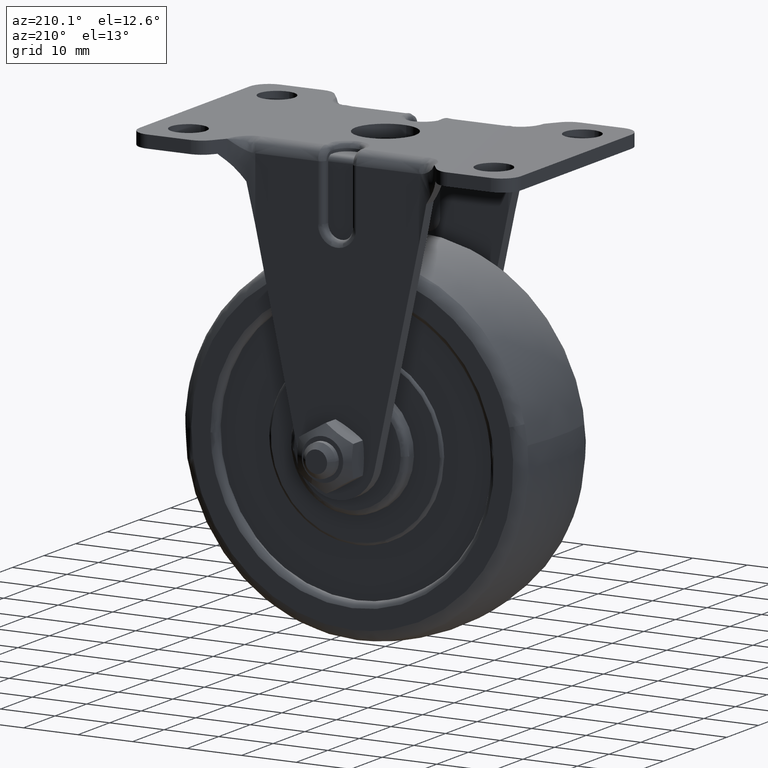
[diagram: clean part render]
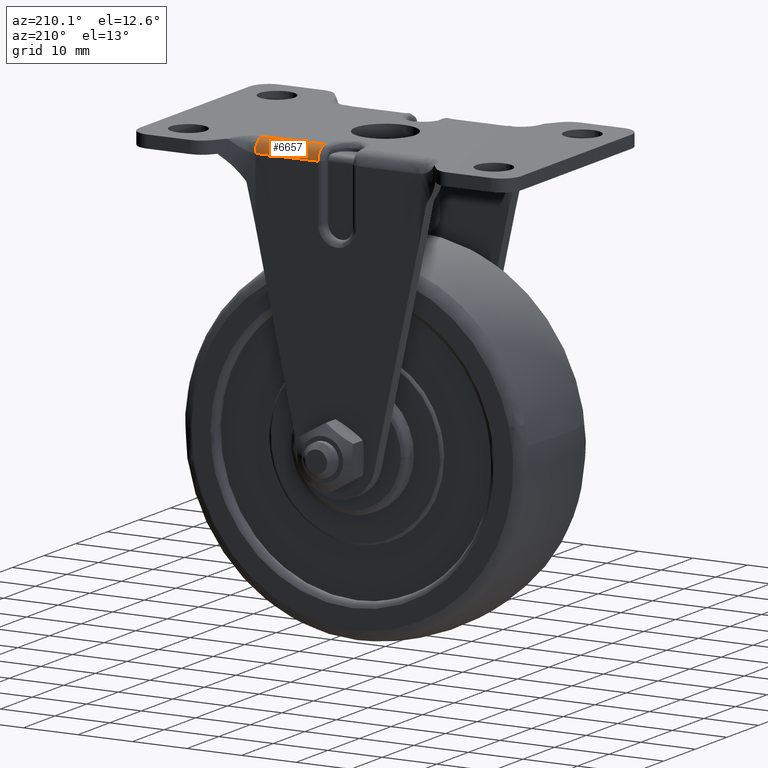
[diagram: same view with one face highlighted and labeled with its STEP entity id]
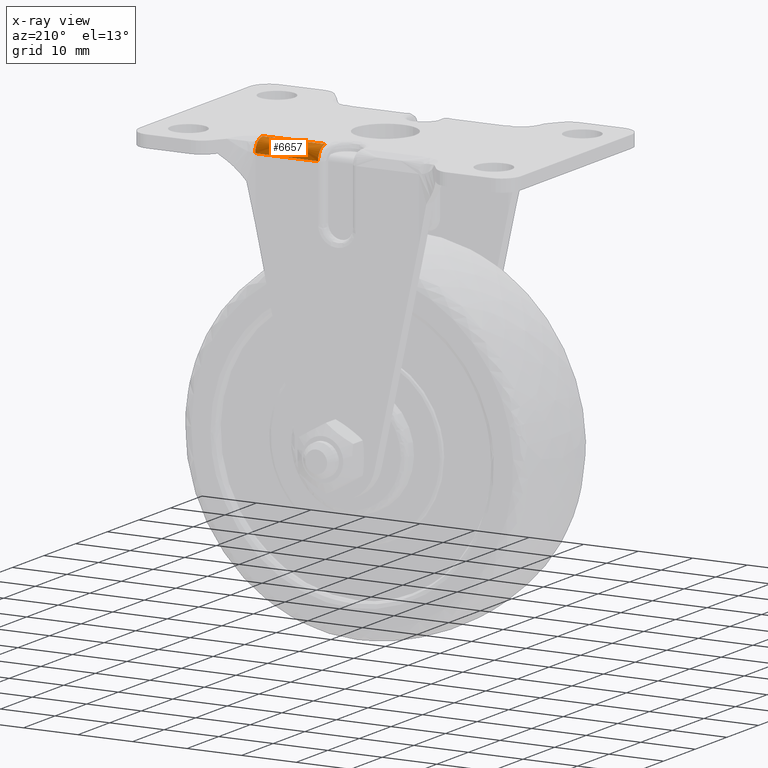
[diagram: x-ray of the same camera — body ghosted, the highlighted face saturated]
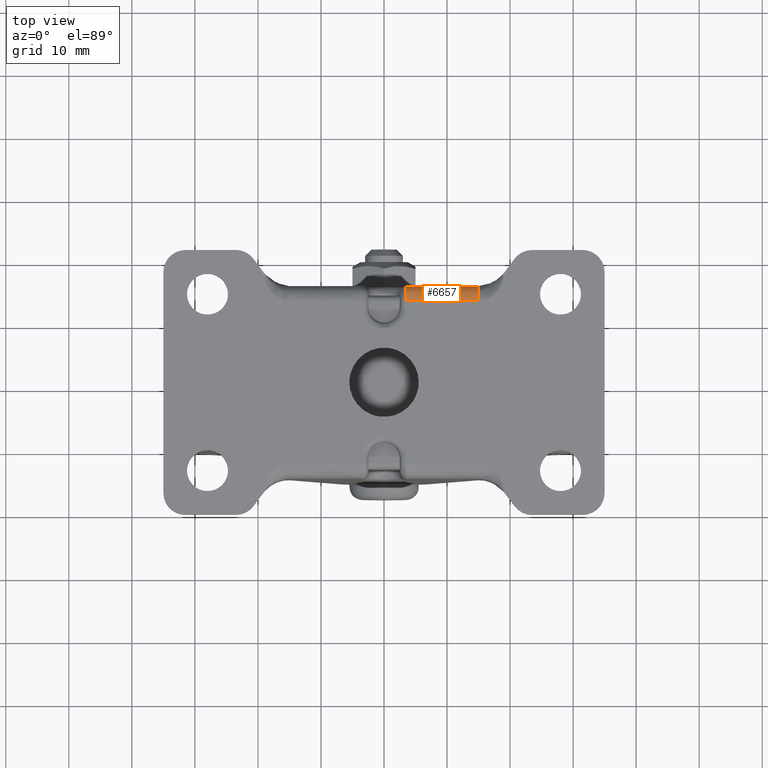
[diagram: same view with one face highlighted and labeled with its STEP entity id]
A machine part, auxiliary view. The second image highlights one B-rep face of the part: STEP entity #6657.
The next image is the same camera in x-ray: the body ghosted, the highlighted face saturated — about 0% of this face is hidden behind the body in this view.
A second angle (top view) of the same face is appended — the face is thin or edge-on in the first view.
In plain terms, the highlighted face is a freeform B-spline surface patch.
Its self-contained STEP definition (entity closure, byte-faithful):
#5119=CARTESIAN_POINT('',(3.500000000000200,15.300002999999901,47.200000000000003));
#5120=VERTEX_POINT('',#5119);
#5245=CARTESIAN_POINT('',(3.500000000000200,13.000002999999900,49.500000000000000));
#5246=VERTEX_POINT('',#5245);
#5260=CARTESIAN_POINT('',(3.500000000000202,15.300002999999901,47.200000000000003));
#5261=CARTESIAN_POINT('',(3.500000000000200,15.300002999999874,49.499999999999901));
#5262=CARTESIAN_POINT('',(3.500000000000204,13.000002999999900,49.500000000000000));
#5270=(BOUNDED_CURVE()B_SPLINE_CURVE(2,(#5260,#5261,#5262),.UNSPECIFIED.,.F.,.U.)CURVE()GEOMETRIC_REPRESENTATION_ITEM()QUASI_UNIFORM_CURVE()RATIONAL_B_SPLINE_CURVE((1.0,0.707106781186548,1.0))REPRESENTATION_ITEM(''));
#5271=EDGE_CURVE('',#5120,#5246,#5270,.T.);
#6603=CARTESIAN_POINT('',(15.0,13.000002999999900,49.500000000000000));
#6604=CARTESIAN_POINT('',(15.000000000000169,15.300002999999874,49.499999999999901));
#6605=CARTESIAN_POINT('',(15.0,15.300002999999901,47.200000000000003));
#6606=CARTESIAN_POINT('',(11.166666666666840,13.000002999999900,49.500000000000000));
#6607=CARTESIAN_POINT('',(11.166666666666860,15.300002999999874,49.499999999999893));
#6608=CARTESIAN_POINT('',(11.166666666666840,15.300002999999901,47.200000000000003));
#6609=CARTESIAN_POINT('',(7.333333333333530,13.000002999999900,49.500000000000000));
#6610=CARTESIAN_POINT('',(7.333333333333530,15.300002999999874,49.499999999999893));
#6611=CARTESIAN_POINT('',(7.333333333333520,15.300002999999901,47.200000000000003));
#6612=CARTESIAN_POINT('',(3.500000000000195,13.000002999999900,49.500000000000000));
#6613=CARTESIAN_POINT('',(3.500000000000194,15.300002999999874,49.499999999999893));
#6614=CARTESIAN_POINT('',(3.500000000000194,15.300002999999901,47.200000000000003));
#6622=(BOUNDED_SURFACE()B_SPLINE_SURFACE(2,3,((#6603,#6606,#6609,#6612),(#6604,#6607,#6610,#6613),(#6605,#6608,#6611,#6614)),.UNSPECIFIED.,.F.,.F.,.U.)B_SPLINE_SURFACE_WITH_KNOTS((3,3),(4,4),(0.0,3.810764773832486),(0.0,11.500000000000011),.UNSPECIFIED.)GEOMETRIC_REPRESENTATION_ITEM()RATIONAL_B_SPLINE_SURFACE(((1.0,1.0,1.0,1.0),(0.707106781186548,0.707106781186548,0.707106781186548,0.707106781186548),(1.0,1.0,1.0,1.0)))REPRESENTATION_ITEM('')SURFACE());
#6623=CARTESIAN_POINT('',(15.0,15.300002999999901,47.200000000000003));
#6624=VERTEX_POINT('',#6623);
#6625=CARTESIAN_POINT('',(3.500000000000214,15.300002999999901,47.200000000000003));
#6626=CARTESIAN_POINT('',(7.333333333333534,15.300002999999901,47.200000000000003));
#6627=CARTESIAN_POINT('',(11.166666666666840,15.300002999999901,47.200000000000003));
#6628=CARTESIAN_POINT('',(15.0,15.300002999999901,47.200000000000003));
#6629=B_SPLINE_CURVE_WITH_KNOTS('',3,(#6625,#6626,#6627,#6628),.UNSPECIFIED.,.F.,.U.,(4,4),(0.0,0.306666666666666),.UNSPECIFIED.);
#6630=EDGE_CURVE('',#5120,#6624,#6629,.T.);
#6631=ORIENTED_EDGE('',*,*,#6630,.F.);
#6632=ORIENTED_EDGE('',*,*,#5271,.T.);
#6633=CARTESIAN_POINT('',(15.0,13.000003000000000,49.500000000000000));
#6634=VERTEX_POINT('',#6633);
#6635=CARTESIAN_POINT('',(15.0,13.000002999999900,49.500000000000000));
#6636=CARTESIAN_POINT('',(11.166666666666840,13.000002999999900,49.500000000000000));
#6637=CARTESIAN_POINT('',(7.333333333333530,13.000002999999900,49.500000000000000));
#6638=CARTESIAN_POINT('',(3.500000000000195,13.000002999999900,49.500000000000000));
#6639=B_SPLINE_CURVE_WITH_KNOTS('',3,(#6635,#6636,#6637,#6638),.UNSPECIFIED.,.F.,.U.,(4,4),(0.0,0.306666666666667),.UNSPECIFIED.);
#6640=EDGE_CURVE('',#6634,#5246,#6639,.T.);
#6641=ORIENTED_EDGE('',*,*,#6640,.F.);
#6642=CARTESIAN_POINT('',(15.0,13.000003000000000,49.500000000000000));
#6643=CARTESIAN_POINT('',(15.000000000000169,15.300002999999988,49.499999999999901));
#6644=CARTESIAN_POINT('',(15.0,15.300003000000000,47.200000000000003));
#6652=(BOUNDED_CURVE()B_SPLINE_CURVE(2,(#6642,#6643,#6644),.UNSPECIFIED.,.F.,.U.)CURVE()GEOMETRIC_REPRESENTATION_ITEM()QUASI_UNIFORM_CURVE()RATIONAL_B_SPLINE_CURVE((1.0,0.707106781186548,1.0))REPRESENTATION_ITEM(''));
#6653=EDGE_CURVE('',#6634,#6624,#6652,.T.);
#6654=ORIENTED_EDGE('',*,*,#6653,.T.);
#6655=EDGE_LOOP('',(#6631,#6632,#6641,#6654));
#6656=FACE_OUTER_BOUND('',#6655,.T.);
#6657=ADVANCED_FACE('',(#6656),#6622,.T.);